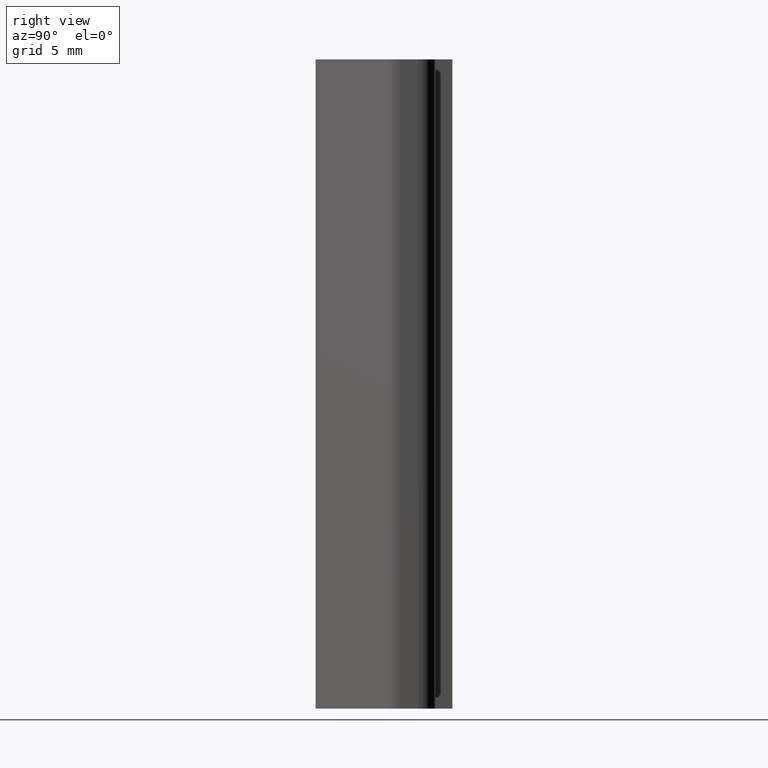
[diagram: clean part render]
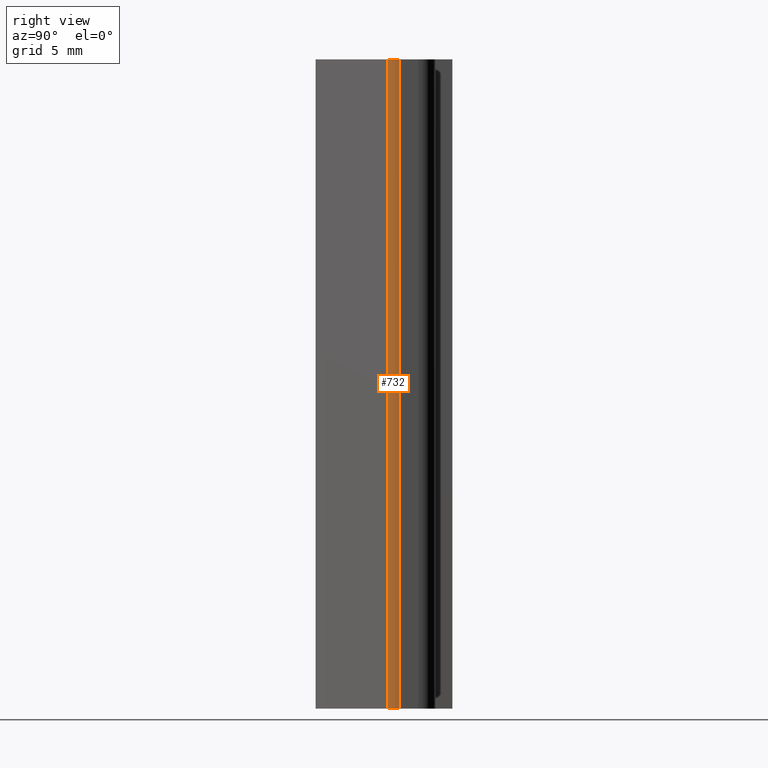
[diagram: same view with one face highlighted and labeled with its STEP entity id]
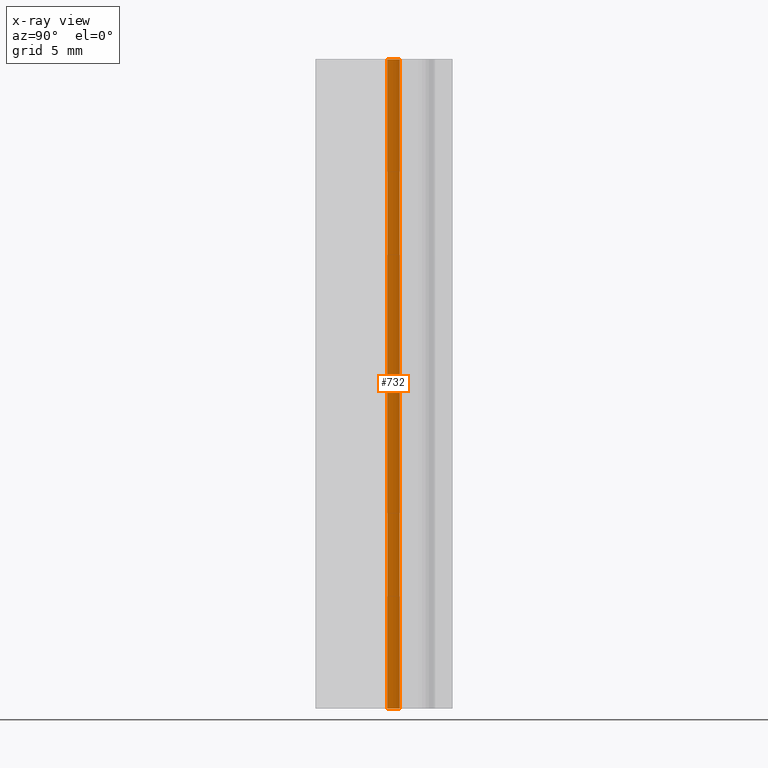
[diagram: x-ray of the same camera — body ghosted, the highlighted face saturated]
A machine part, right view. The second image highlights one B-rep face of the part: STEP entity #732.
The next image is the same camera in x-ray: the body ghosted, the highlighted face saturated — about 0% of this face is hidden behind the body in this view.
In plain terms, the highlighted cylindrical surface (edge-blend (fillet) strip) has radius 1 mm, axis along (0, 0, 1).
Its self-contained STEP definition (entity closure, byte-faithful):
#463=CARTESIAN_POINT('',(9.218338135971266,1.664457173001750,-19.0));
#464=VERTEX_POINT('',#463);
#471=CARTESIAN_POINT('',(8.925444915971269,0.957350393001747,-19.0));
#472=VERTEX_POINT('',#471);
#473=CARTESIAN_POINT('',(8.218338148980866,1.664457169986085,-19.0));
#474=DIRECTION('',(0.0,0.0,1.0));
#475=DIRECTION('',(-0.707106776189580,0.707106786183515,0.0));
#476=AXIS2_PLACEMENT_3D('',#473,#474,#475);
#477=CIRCLE('',#476,0.999999986990400);
#478=EDGE_CURVE('',#472,#464,#477,.T.);
#689=CARTESIAN_POINT('',(9.218338135971266,1.664457173001750,19.0));
#690=VERTEX_POINT('',#689);
#697=CARTESIAN_POINT('',(9.218338135971266,1.664457173001750,19.0));
#698=DIRECTION('',(0.0,0.0,-1.0));
#699=VECTOR('',#698,38.0);
#700=LINE('',#697,#699);
#701=EDGE_CURVE('',#690,#464,#700,.T.);
#708=CARTESIAN_POINT('',(8.218338148980866,1.664457169986085,0.0));
#709=DIRECTION('',(0.0,0.0,1.0));
#710=DIRECTION('',(-0.707106776189580,0.707106786183515,0.0));
#711=AXIS2_PLACEMENT_3D('',#708,#709,#710);
#712=CYLINDRICAL_SURFACE('',#711,0.999999986990400);
#713=CARTESIAN_POINT('',(8.925444915971269,0.957350393001747,19.0));
#714=VERTEX_POINT('',#713);
#715=CARTESIAN_POINT('',(8.218338148980866,1.664457169986085,19.0));
#716=DIRECTION('',(0.0,0.0,-1.0));
#717=DIRECTION('',(-0.707106776189580,0.707106786183515,0.0));
#718=AXIS2_PLACEMENT_3D('',#715,#716,#717);
#719=CIRCLE('',#718,0.999999986990400);
#720=EDGE_CURVE('',#690,#714,#719,.T.);
#721=ORIENTED_EDGE('',*,*,#720,.T.);
#722=CARTESIAN_POINT('',(8.925444915971269,0.957350393001747,19.0));
#723=DIRECTION('',(0.0,0.0,-1.0));
#724=VECTOR('',#723,38.0);
#725=LINE('',#722,#724);
#726=EDGE_CURVE('',#714,#472,#725,.T.);
#727=ORIENTED_EDGE('',*,*,#726,.T.);
#728=ORIENTED_EDGE('',*,*,#478,.T.);
#729=ORIENTED_EDGE('',*,*,#701,.F.);
#730=EDGE_LOOP('',(#721,#727,#728,#729));
#731=FACE_OUTER_BOUND('',#730,.T.);
#732=ADVANCED_FACE('',(#731),#712,.T.);